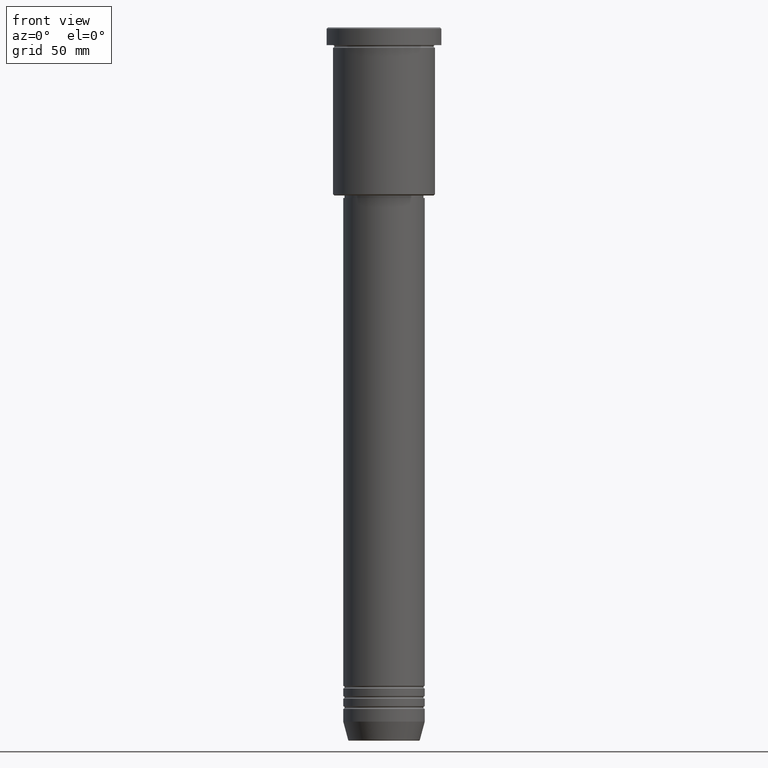
[diagram: clean part render]
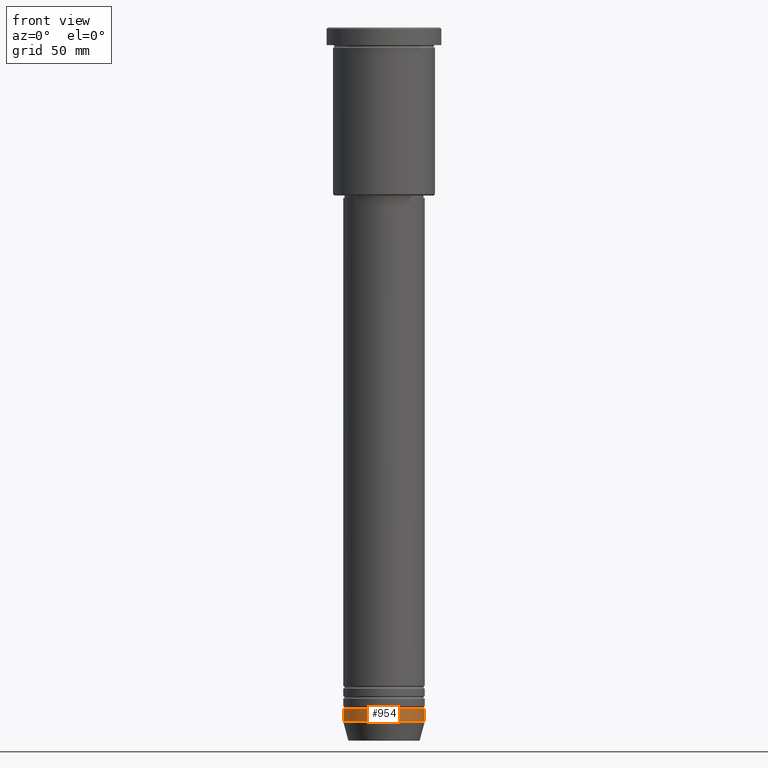
[diagram: same view with one face highlighted and labeled with its STEP entity id]
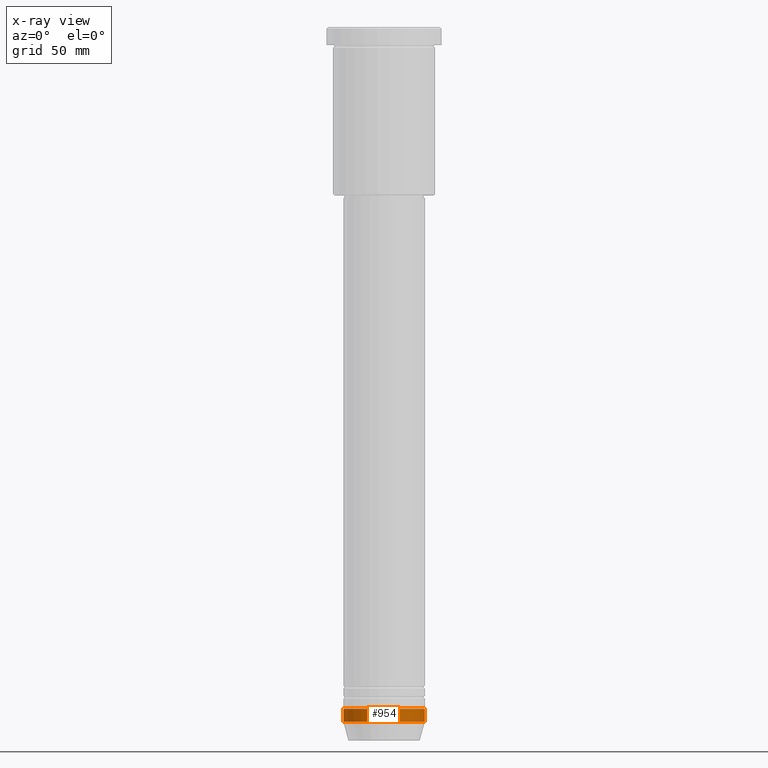
[diagram: x-ray of the same camera — body ghosted, the highlighted face saturated]
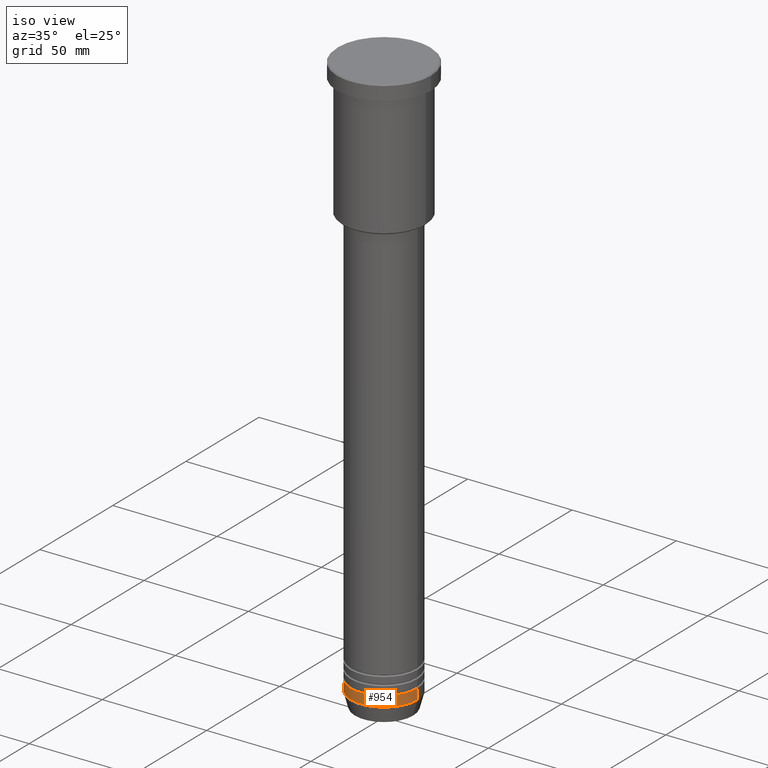
[diagram: same view with one face highlighted and labeled with its STEP entity id]
A machine part, front view. The second image highlights one B-rep face of the part: STEP entity #954.
The next image is the same camera in x-ray: the body ghosted, the highlighted face saturated — about 0% of this face is hidden behind the body in this view.
A second angle (iso view) of the same face is appended — the face is thin or edge-on in the first view.
In plain terms, the highlighted cylindrical surface (partial cylindrical patch) has radius 16 mm, axis along (-0, -0, 1).
Its self-contained STEP definition (entity closure, byte-faithful):
#18 = AXIS2_PLACEMENT_3D ( 'NONE', #130, #316, #939 ) ;
#22 = VERTEX_POINT ( 'NONE', #1006 ) ;
#43 = CARTESIAN_POINT ( 'NONE',  ( 0.000000000000000000, 0.000000000000000000, -267.5000000000000000 ) ) ;
#66 = VERTEX_POINT ( 'NONE', #1112 ) ;
#71 = ORIENTED_EDGE ( 'NONE', *, *, #1005, .T. ) ;
#130 = CARTESIAN_POINT ( 'NONE',  ( 0.000000000000000000, 0.000000000000000000, -272.5000000000000000 ) ) ;
#147 = ORIENTED_EDGE ( 'NONE', *, *, #936, .T. ) ;
#184 = CIRCLE ( 'NONE', #18, 16.00000000000000000 ) ;
#198 = CARTESIAN_POINT ( 'NONE',  ( -16.00000000000000000, 1.959434878635765131E-15, 0.000000000000000000 ) ) ;
#269 = LINE ( 'NONE', #198, #1004 ) ;
#298 = DIRECTION ( 'NONE',  ( 1.000000000000000000, 0.000000000000000000, 0.000000000000000000 ) ) ;
#315 = ORIENTED_EDGE ( 'NONE', *, *, #907, .F. ) ;
#316 = DIRECTION ( 'NONE',  ( -0.000000000000000000, -0.000000000000000000, 1.000000000000000000 ) ) ;
#354 = VERTEX_POINT ( 'NONE', #1048 ) ;
#359 = CARTESIAN_POINT ( 'NONE',  ( 16.00000000000000000, 0.000000000000000000, 0.000000000000000000 ) ) ;
#451 = FACE_OUTER_BOUND ( 'NONE', #1079, .T. ) ;
#467 = CYLINDRICAL_SURFACE ( 'NONE', #620, 16.00000000000000000 ) ;
#539 = CARTESIAN_POINT ( 'NONE',  ( 0.000000000000000000, 0.000000000000000000, 0.000000000000000000 ) ) ;
#620 = AXIS2_PLACEMENT_3D ( 'NONE', #539, #719, #1020 ) ;
#654 = DIRECTION ( 'NONE',  ( -0.000000000000000000, -0.000000000000000000, 1.000000000000000000 ) ) ;
#714 = ORIENTED_EDGE ( 'NONE', *, *, #1049, .F. ) ;
#719 = DIRECTION ( 'NONE',  ( -0.000000000000000000, -0.000000000000000000, 1.000000000000000000 ) ) ;
#738 = LINE ( 'NONE', #359, #1124 ) ;
#775 = CARTESIAN_POINT ( 'NONE',  ( 16.00000000000000000, 0.000000000000000000, -267.5000000000000000 ) ) ;
#776 = AXIS2_PLACEMENT_3D ( 'NONE', #43, #852, #298 ) ;
#852 = DIRECTION ( 'NONE',  ( -0.000000000000000000, -0.000000000000000000, 1.000000000000000000 ) ) ;
#907 = EDGE_CURVE ( 'NONE', #354, #66, #269, .T. ) ;
#936 = EDGE_CURVE ( 'NONE', #22, #985, #738, .T. ) ;
#939 = DIRECTION ( 'NONE',  ( 1.000000000000000000, 0.000000000000000000, 0.000000000000000000 ) ) ;
#954 = ADVANCED_FACE ( 'NONE', ( #451 ), #467, .T. ) ;
#984 = CIRCLE ( 'NONE', #776, 16.00000000000000000 ) ;
#985 = VERTEX_POINT ( 'NONE', #775 ) ;
#1004 = VECTOR ( 'NONE', #654, 1000.000000000000000 ) ;
#1005 = EDGE_CURVE ( 'NONE', #354, #22, #184, .T. ) ;
#1006 = CARTESIAN_POINT ( 'NONE',  ( 16.00000000000000000, 0.000000000000000000, -272.5000000000000000 ) ) ;
#1020 = DIRECTION ( 'NONE',  ( 1.000000000000000000, 0.000000000000000000, 0.000000000000000000 ) ) ;
#1048 = CARTESIAN_POINT ( 'NONE',  ( -16.00000000000000000, 1.959434878635765131E-15, -272.5000000000000000 ) ) ;
#1049 = EDGE_CURVE ( 'NONE', #66, #985, #984, .T. ) ;
#1079 = EDGE_LOOP ( 'NONE', ( #315, #71, #147, #714 ) ) ;
#1109 = DIRECTION ( 'NONE',  ( -0.000000000000000000, -0.000000000000000000, 1.000000000000000000 ) ) ;
#1112 = CARTESIAN_POINT ( 'NONE',  ( -16.00000000000000000, 1.959434878635765131E-15, -267.5000000000000000 ) ) ;
#1124 = VECTOR ( 'NONE', #1109, 1000.000000000000000 ) ;